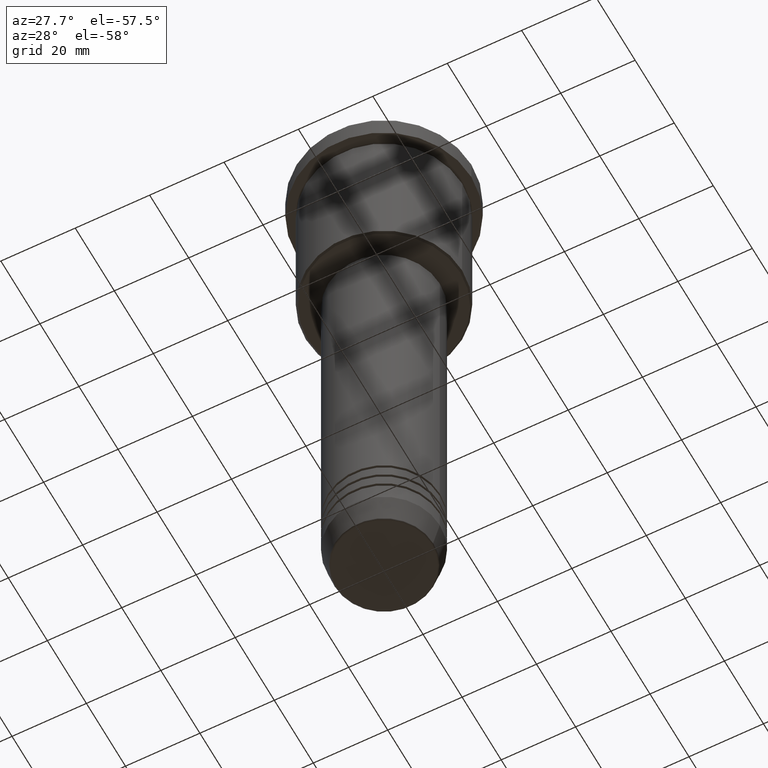
[diagram: clean part render]
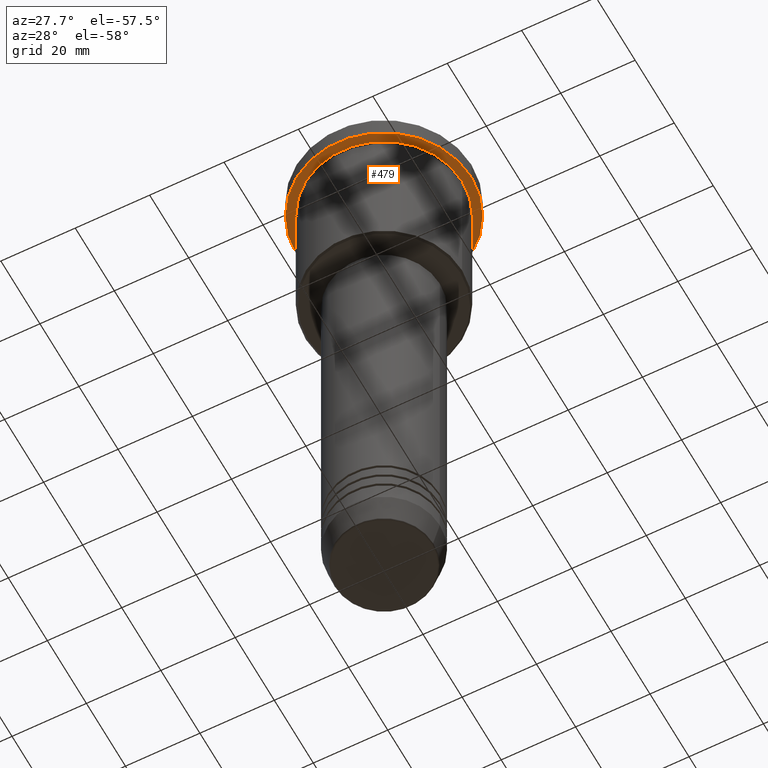
[diagram: same view with one face highlighted and labeled with its STEP entity id]
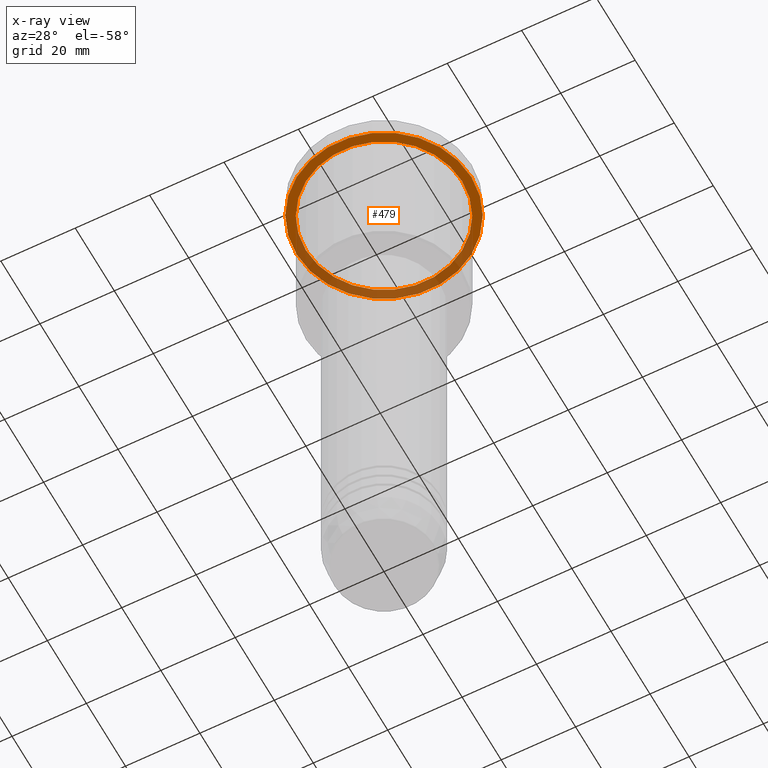
[diagram: x-ray of the same camera — body ghosted, the highlighted face saturated]
A machine part, auxiliary view. The second image highlights one B-rep face of the part: STEP entity #479.
The next image is the same camera in x-ray: the body ghosted, the highlighted face saturated — about 39% of this face is hidden behind the body in this view.
In plain terms, the highlighted planar face has unit normal (0, 0, -1).
Its self-contained STEP definition (entity closure, byte-faithful):
#1 = CARTESIAN_POINT ( 'NONE',  ( 0.000000000000000000, 0.000000000000000000, -5.999999999999993783 ) ) ;
#10 = ORIENTED_EDGE ( 'NONE', *, *, #1002, .F. ) ;
#17 = DIRECTION ( 'NONE',  ( -0.000000000000000000, -0.000000000000000000, 1.000000000000000000 ) ) ;
#36 = CARTESIAN_POINT ( 'NONE',  ( 0.000000000000000000, 0.000000000000000000, -5.999999999999993783 ) ) ;
#82 = DIRECTION ( 'NONE',  ( -0.000000000000000000, -0.000000000000000000, 1.000000000000000000 ) ) ;
#88 = AXIS2_PLACEMENT_3D ( 'NONE', #1137, #305, #300 ) ;
#96 = CARTESIAN_POINT ( 'NONE',  ( 21.00000000000000000, 2.571758278209441661E-15, -5.999999999999992895 ) ) ;
#101 = VERTEX_POINT ( 'NONE', #673 ) ;
#111 = ORIENTED_EDGE ( 'NONE', *, *, #905, .F. ) ;
#135 = DIRECTION ( 'NONE',  ( -1.000000000000000000, 0.000000000000000000, -0.000000000000000000 ) ) ;
#144 = CIRCLE ( 'NONE', #1069, 21.00000000000000000 ) ;
#192 = VERTEX_POINT ( 'NONE', #272 ) ;
#202 = CIRCLE ( 'NONE', #88, 23.50000000000000000 ) ;
#261 = VERTEX_POINT ( 'NONE', #555 ) ;
#272 = CARTESIAN_POINT ( 'NONE',  ( -21.00000000000000000, 0.000000000000000000, -5.999999999999992895 ) ) ;
#300 = DIRECTION ( 'NONE',  ( 1.000000000000000000, 0.000000000000000000, 0.000000000000000000 ) ) ;
#305 = DIRECTION ( 'NONE',  ( -0.000000000000000000, -0.000000000000000000, 1.000000000000000000 ) ) ;
#380 = ORIENTED_EDGE ( 'NONE', *, *, #391, .T. ) ;
#387 = DIRECTION ( 'NONE',  ( -1.000000000000000000, 0.000000000000000000, 0.000000000000000000 ) ) ;
#391 = EDGE_CURVE ( 'NONE', #925, #192, #777, .T. ) ;
#410 = FACE_OUTER_BOUND ( 'NONE', #857, .T. ) ;
#479 = ADVANCED_FACE ( 'NONE', ( #865, #410 ), #1136, .T. ) ;
#555 = CARTESIAN_POINT ( 'NONE',  ( 23.50000000000000000, 0.000000000000000000, -5.999999999999993783 ) ) ;
#565 = DIRECTION ( 'NONE',  ( 1.000000000000000000, 0.000000000000000000, 0.000000000000000000 ) ) ;
#569 = ORIENTED_EDGE ( 'NONE', *, *, #659, .T. ) ;
#655 = CARTESIAN_POINT ( 'NONE',  ( 0.000000000000000000, 0.000000000000000000, -5.999999999999993783 ) ) ;
#659 = EDGE_CURVE ( 'NONE', #192, #925, #144, .T. ) ;
#673 = CARTESIAN_POINT ( 'NONE',  ( -23.50000000000000000, 2.877919977996280320E-15, -5.999999999999993783 ) ) ;
#684 = DIRECTION ( 'NONE',  ( -1.000000000000000000, 0.000000000000000000, 0.000000000000000000 ) ) ;
#724 = CIRCLE ( 'NONE', #759, 23.50000000000000000 ) ;
#759 = AXIS2_PLACEMENT_3D ( 'NONE', #655, #82, #565 ) ;
#777 = CIRCLE ( 'NONE', #1047, 21.00000000000000000 ) ;
#857 = EDGE_LOOP ( 'NONE', ( #111, #10 ) ) ;
#865 = FACE_BOUND ( 'NONE', #1091, .T. ) ;
#891 = AXIS2_PLACEMENT_3D ( 'NONE', #1053, #967, #135 ) ;
#905 = EDGE_CURVE ( 'NONE', #261, #101, #724, .T. ) ;
#925 = VERTEX_POINT ( 'NONE', #96 ) ;
#967 = DIRECTION ( 'NONE',  ( 0.000000000000000000, 0.000000000000000000, -1.000000000000000000 ) ) ;
#1002 = EDGE_CURVE ( 'NONE', #101, #261, #202, .T. ) ;
#1047 = AXIS2_PLACEMENT_3D ( 'NONE', #36, #1124, #684 ) ;
#1053 = CARTESIAN_POINT ( 'NONE',  ( 0.000000000000000000, 23.50000000000000000, -5.999999999999993783 ) ) ;
#1069 = AXIS2_PLACEMENT_3D ( 'NONE', #1, #17, #387 ) ;
#1091 = EDGE_LOOP ( 'NONE', ( #569, #380 ) ) ;
#1124 = DIRECTION ( 'NONE',  ( -0.000000000000000000, -0.000000000000000000, 1.000000000000000000 ) ) ;
#1136 = PLANE ( 'NONE',  #891 ) ;
#1137 = CARTESIAN_POINT ( 'NONE',  ( 0.000000000000000000, 0.000000000000000000, -5.999999999999993783 ) ) ;